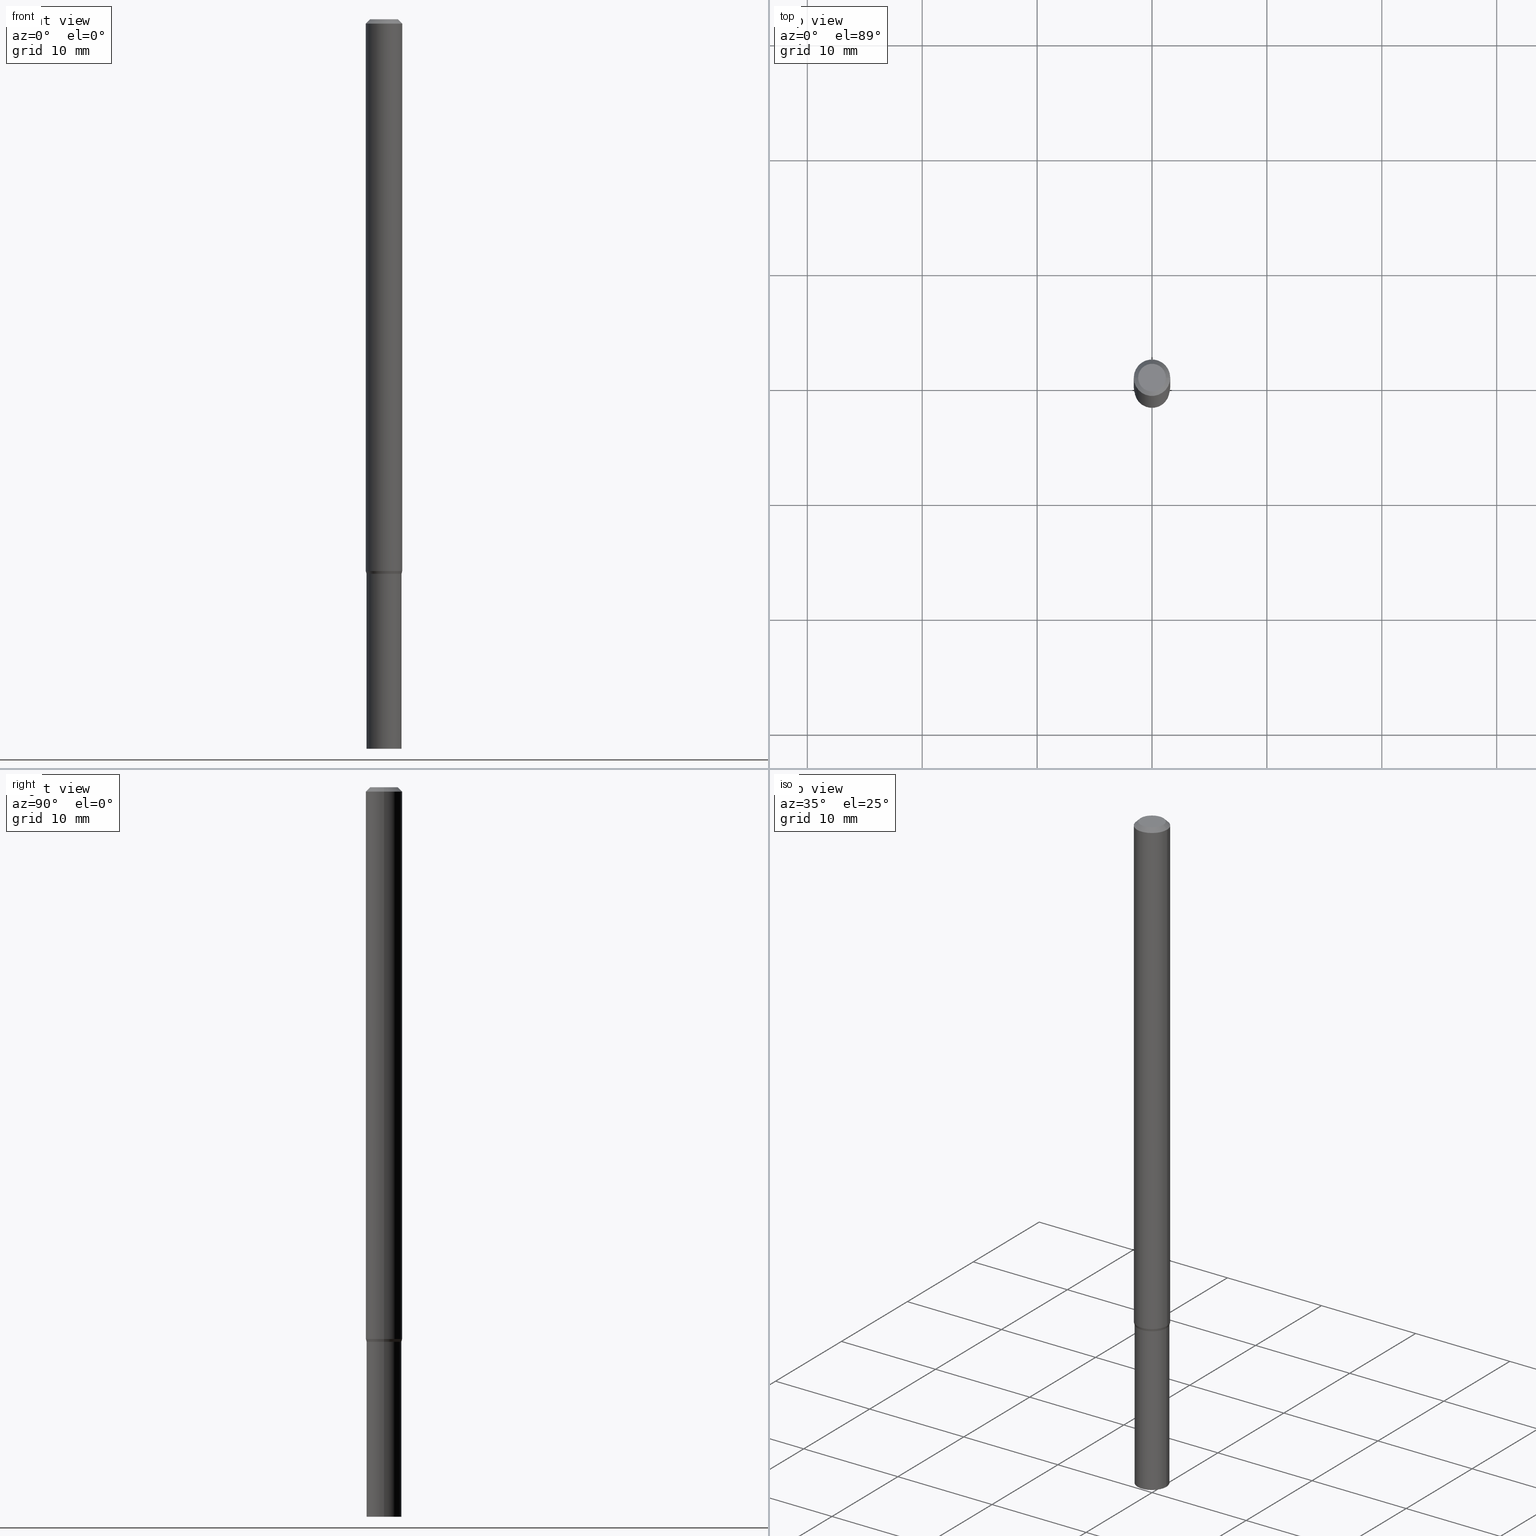
[diagram: canonical four-view strip — front | top / right | iso, engineering-drawing reading convention]
A machine part, canonical four-view strip (front | top / right | iso — engineering-drawing reading convention). The complete STEP part file that produces these views, byte-faithful:
ISO-10303-21;
HEADER;
FILE_DESCRIPTION (( 'STEP AP203' ),
    '1' );
FILE_NAME ('01254.STEP',
    '2024-03-20T00:36:38',
    ( '' ),
    ( '' ),
    'SwSTEP 2.0',
    'SolidWorks 2023',
    '' );
FILE_SCHEMA (( 'CONFIG_CONTROL_DESIGN' ));
ENDSEC;

DATA;
#1 = ORIENTED_EDGE ( 'NONE', *, *, #51, .T. ) ;
#2 = ORIENTED_EDGE ( 'NONE', *, *, #367, .T. ) ;
#3 = VECTOR ( 'NONE', #452, 39.37007874015748854 ) ;
#4 = CARTESIAN_POINT ( 'NONE',  ( 0.000000000000000000, 0.000000000000000000, 0.000000000000000000 ) ) ;
#5 = DATE_AND_TIME ( #179, #241 ) ;
#6 = APPROVAL_ROLE ( '' ) ;
#7 = ORIENTED_EDGE ( 'NONE', *, *, #64, .F. ) ;
#8 = PERSON_AND_ORGANIZATION_ROLE ( 'classification_officer' ) ;
#9 = ORIENTED_EDGE ( 'NONE', *, *, #456, .F. ) ;
#10 = CYLINDRICAL_SURFACE ( 'NONE', #193, 0.05999999999999999778 ) ;
#11 = CARTESIAN_POINT ( 'NONE',  ( 4.646390731751761103E-29, -6.633814543801978619E-15, -1.900000000000000577 ) ) ;
#12 = ADVANCED_FACE ( 'NONE', ( #443 ), #10, .T. ) ;
#13 = DIRECTION ( 'NONE',  ( -2.445468806185136877E-29, 3.491481338843145188E-15, 1.000000000000000000 ) ) ;
#14 = CARTESIAN_POINT ( 'NONE',  ( 3.316907271900976096E-16, 0.04749999999999999362, -1.161975777125777867E-16 ) ) ;
#15 = ORIENTED_EDGE ( 'NONE', *, *, #114, .F. ) ;
#16 = DIRECTION ( 'NONE',  ( 1.000000000000000000, -6.982962677686259611E-15, 0.000000000000000000 ) ) ;
#17 = AXIS2_PLACEMENT_3D ( 'NONE', #335, #460, #153 ) ;
#18 = EDGE_LOOP ( 'NONE', ( #264, #68, #401, #331 ) ) ;
#19 = DIRECTION ( 'NONE',  ( -2.445468806185136597E-29, 3.491481338843145583E-15, 1.000000000000000000 ) ) ;
#20 = ORIENTED_EDGE ( 'NONE', *, *, #444, .T. ) ;
#21 = CARTESIAN_POINT ( 'NONE',  ( 4.646390731751759982E-29, -6.633814543801977041E-15, -1.900000000000000133 ) ) ;
#22 = CARTESIAN_POINT ( 'NONE',  ( 0.05999999999999999778, -4.189777606611760421E-16, 2.925706065477561756E-30 ) ) ;
#23 = APPROVAL_STATUS ( 'not_yet_approved' ) ;
#24 = ADVANCED_FACE ( 'NONE', ( #149 ), #74, .F. ) ;
#25 = EDGE_CURVE ( 'NONE', #392, #141, #228, .T. ) ;
#26 = DIRECTION ( 'NONE',  ( 1.000000000000000000, -6.982962677686261189E-15, 0.000000000000000000 ) ) ;
#27 = DATE_AND_TIME ( #188, #142 ) ;
#28 = ORGANIZATION ( 'UNSPECIFIED', 'UNSPECIFIED', '' ) ;
#29 = PRODUCT_RELATED_PRODUCT_CATEGORY ( 'detail', '', ( #454 ) ) ;
#30 = MANIFOLD_SOLID_BREP ( 'Body-Move/Copy2[2]', #359 ) ;
#31 = PLANE ( 'NONE',  #400 ) ;
#32 = DIRECTION ( 'NONE',  ( 1.000000000000000000, -6.982962677686262766E-15, 0.000000000000000000 ) ) ;
#33 = CARTESIAN_POINT ( 'NONE',  ( -0.05949999999999999734, -6.211041616024719027E-15, -1.900000000000000577 ) ) ;
#34 = AXIS2_PLACEMENT_3D ( 'NONE', #116, #80, #90 ) ;
#35 = SHAPE_DEFINITION_REPRESENTATION ( #88, #320 ) ;
#36 = ORIENTED_EDGE ( 'NONE', *, *, #43, .F. ) ;
#37 = ORIENTED_EDGE ( 'NONE', *, *, #328, .F. ) ;
#38 = CARTESIAN_POINT ( 'NONE',  ( 3.668203209277705088E-31, -5.237222008264718399E-17, -0.01499999999999999944 ) ) ;
#39 = ORIENTED_EDGE ( 'NONE', *, *, #463, .F. ) ;
#40 = CC_DESIGN_DATE_AND_TIME_ASSIGNMENT ( #27, #155, ( #70 ) ) ;
#41 = FACE_OUTER_BOUND ( 'NONE', #18, .T. ) ;
#42 = AXIS2_PLACEMENT_3D ( 'NONE', #380, #67, #273 ) ;
#43 = EDGE_CURVE ( 'NONE', #46, #100, #166, .T. ) ;
#44 = ORIENTED_EDGE ( 'NONE', *, *, #456, .T. ) ;
#45 = VERTEX_POINT ( 'NONE', #369 ) ;
#46 = VERTEX_POINT ( 'NONE', #293 ) ;
#47 = AXIS2_PLACEMENT_3D ( 'NONE', #226, #115, #419 ) ;
#48 = AXIS2_PLACEMENT_3D ( 'NONE', #334, #220, #298 ) ;
#49 = CARTESIAN_POINT ( 'NONE',  ( -0.06000000000000034472, 4.263256414560625609E-16, -2.951361054152960229E-30 ) ) ;
#50 = PLANE ( 'NONE',  #457 ) ;
#51 = EDGE_CURVE ( 'NONE', #248, #141, #76, .T. ) ;
#52 = CARTESIAN_POINT ( 'NONE',  ( 0.000000000000000000, 0.000000000000000000, 0.000000000000000000 ) ) ;
#53 = DIRECTION ( 'NONE',  ( 1.000000000000000000, -6.982962677686261189E-15, 0.000000000000000000 ) ) ;
#54 = APPROVAL ( #440, 'UNSPECIFIED' ) ;
#55 = DIRECTION ( 'NONE',  ( -2.445468806185136597E-29, 3.491481338843145583E-15, 1.000000000000000000 ) ) ;
#56 = AXIS2_PLACEMENT_3D ( 'NONE', #246, #237, #173 ) ;
#57 = PRODUCT_DEFINITION_FORMATION_WITH_SPECIFIED_SOURCE ( 'ANY', '', #454, .NOT_KNOWN. ) ;
#58 = CARTESIAN_POINT ( 'NONE',  ( -0.06250000000000000000, -2.882716189904449546E-15, -0.01499999999999999944 ) ) ;
#59 = VERTEX_POINT ( 'NONE', #398 ) ;
#60 = ADVANCED_FACE ( 'NONE', ( #41 ), #365, .T. ) ;
#61 = APPLICATION_PROTOCOL_DEFINITION ( 'international standard', 'config_control_design', 1994, #333 ) ;
#62 = FACE_OUTER_BOUND ( 'NONE', #95, .T. ) ;
#63 = PERSON_AND_ORGANIZATION_ROLE ( 'design_supplier' ) ;
#64 = EDGE_CURVE ( 'NONE', #59, #215, #437, .T. ) ;
#65 = DIRECTION ( 'NONE',  ( -2.445468806185136877E-29, 3.491481338843145188E-15, 1.000000000000000000 ) ) ;
#66 = CARTESIAN_POINT ( 'NONE',  ( 4.646390731751759982E-29, -6.633814543801977041E-15, -1.900000000000000133 ) ) ;
#67 = DIRECTION ( 'NONE',  ( -2.445468806185136597E-29, 3.491481338843145583E-15, 1.000000000000000000 ) ) ;
#68 = ORIENTED_EDGE ( 'NONE', *, *, #363, .T. ) ;
#69 = CC_DESIGN_PERSON_AND_ORGANIZATION_ASSIGNMENT ( #234, #63, ( #57 ) ) ;
#70 = PRODUCT_DEFINITION ( 'UNKNOWN', '', #57, #96 ) ;
#71 = EDGE_LOOP ( 'NONE', ( #277, #131 ) ) ;
#72 = EDGE_LOOP ( 'NONE', ( #205, #181, #198, #182 ) ) ;
#73 = ORIENTED_EDGE ( 'NONE', *, *, #403, .T. ) ;
#74 = CYLINDRICAL_SURFACE ( 'NONE', #387, 0.06000000000000034472 ) ;
#75 = DIRECTION ( 'NONE',  ( -2.445468806185136597E-29, 3.491481338843145583E-15, 1.000000000000000000 ) ) ;
#76 = LINE ( 'NONE', #113, #253 ) ;
#77 = LOCAL_TIME ( 20, 36, 38.00000000000000000, #225 ) ;
#78 = DIRECTION ( 'NONE',  ( -2.445468806185136597E-29, 3.491481338843145583E-15, 1.000000000000000000 ) ) ;
#79 = CARTESIAN_POINT ( 'NONE',  ( -0.06000000000000019901, -6.205743161676494258E-15, -1.899500000000000410 ) ) ;
#80 = DIRECTION ( 'NONE',  ( 2.445468806185136597E-29, -3.491481338843145583E-15, -1.000000000000000000 ) ) ;
#81 = PLANE ( 'NONE',  #195 ) ;
#82 = DIRECTION ( 'NONE',  ( 1.000000000000000000, 0.000000000000000000, 0.000000000000000000 ) ) ;
#83 = CARTESIAN_POINT ( 'NONE',  ( -0.06250000000000000000, -6.157149369576314234E-15, -1.890669872981078692 ) ) ;
#84 = CONICAL_SURFACE ( 'NONE', #229, 0.05949999999999999734, 0.7853981633974739252 ) ;
#85 = CARTESIAN_POINT ( 'NONE',  ( 0.06000000000000034472, -4.189777606611784087E-16, 2.925706065477577871E-30 ) ) ;
#86 = CARTESIAN_POINT ( 'NONE',  ( 4.646390731751761103E-29, -6.633814543801978619E-15, -1.900000000000000577 ) ) ;
#87 = CC_DESIGN_PERSON_AND_ORGANIZATION_ASSIGNMENT ( #420, #89, ( #57 ) ) ;
#88 = PRODUCT_DEFINITION_SHAPE ( 'NONE', 'NONE',  #70 ) ;
#89 = PERSON_AND_ORGANIZATION_ROLE ( 'creator' ) ;
#90 = DIRECTION ( 'NONE',  ( -1.000000000000000000, 6.982962677686266711E-15, 0.000000000000000000 ) ) ;
#91 = CARTESIAN_POINT ( 'NONE',  ( -0.05999999999999999778, 4.263256414560600957E-16, -2.951361054152943413E-30 ) ) ;
#92 = ORIENTED_EDGE ( 'NONE', *, *, #232, .T. ) ;
#93 = LINE ( 'NONE', #33, #465 ) ;
#94 = AXIS2_PLACEMENT_3D ( 'NONE', #207, #243, #390 ) ;
#95 = EDGE_LOOP ( 'NONE', ( #402, #2, #357, #288 ) ) ;
#96 = DESIGN_CONTEXT ( 'detailed design', #162, 'design' ) ;
#97 = CARTESIAN_POINT ( 'NONE',  ( 0.06000000000000019901, -7.051046563793732960E-15, -1.899500000000000410 ) ) ;
#98 = CARTESIAN_POINT ( 'NONE',  ( 4.189777606612224370E-16, 0.05999999999999336420, -1.900000000000000577 ) ) ;
#99 = VECTOR ( 'NONE', #65, 39.37007874015748143 ) ;
#100 = VERTEX_POINT ( 'NONE', #83 ) ;
#101 = CC_DESIGN_APPROVAL ( #423, ( #57 ) ) ;
#102 = EDGE_LOOP ( 'NONE', ( #187, #438, #1, #92 ) ) ;
#103 = DATE_AND_TIME ( #397, #326 ) ;
#104 = ORIENTED_EDGE ( 'NONE', *, *, #451, .T. ) ;
#105 = COORDINATED_UNIVERSAL_TIME_OFFSET ( 5, 0, .BEHIND. ) ;
#106 = CALENDAR_DATE ( 2024, 19, 3 ) ;
#107 = CARTESIAN_POINT ( 'NONE',  ( 0.000000000000000000, 0.000000000000000000, 0.000000000000000000 ) ) ;
#108 = CLOSED_SHELL ( 'NONE', ( #12, #316, #60, #329 ) ) ;
#109 = AXIS2_PLACEMENT_3D ( 'NONE', #464, #272, #355 ) ;
#110 = PERSON_AND_ORGANIZATION ( #413, #28 ) ;
#111 = ORIENTED_EDGE ( 'NONE', *, *, #64, .T. ) ;
#112 = CC_DESIGN_DATE_AND_TIME_ASSIGNMENT ( #103, #282, ( #442 ) ) ;
#113 = CARTESIAN_POINT ( 'NONE',  ( -0.06250000000000000000, 3.840629472727444916E-16, -0.01499999999999999944 ) ) ;
#114 = EDGE_CURVE ( 'NONE', #126, #223, #222, .T. ) ;
#115 = DIRECTION ( 'NONE',  ( -2.445468806185136597E-29, 3.491481338843145583E-15, 1.000000000000000000 ) ) ;
#116 = CARTESIAN_POINT ( 'NONE',  ( 3.668203209277705088E-31, -5.237222008264718399E-17, -0.01499999999999999944 ) ) ;
#117 = AXIS2_PLACEMENT_3D ( 'NONE', #21, #194, #342 ) ;
#118 = CC_DESIGN_SECURITY_CLASSIFICATION ( #442, ( #57 ) ) ;
#119 = CARTESIAN_POINT ( 'NONE',  ( 3.668203209277705088E-31, -5.237222008264718399E-17, -0.01499999999999999944 ) ) ;
#120 = DIRECTION ( 'NONE',  ( -2.438088387897960049E-29, 3.491481338843145188E-15, 1.000000000000000000 ) ) ;
#121 = CARTESIAN_POINT ( 'NONE',  ( 0.06000000000000048350, -7.052792304463156041E-15, -1.900000000000000133 ) ) ;
#122 = CIRCLE ( 'NONE', #340, 0.04749999999999999362 ) ;
#123 = AXIS2_PLACEMENT_3D ( 'NONE', #172, #383, #314 ) ;
#124 = DIRECTION ( 'NONE',  ( 2.438088387897960049E-29, -3.491481338843145188E-15, -1.000000000000000000 ) ) ;
#125 = DATE_AND_TIME ( #279, #429 ) ;
#126 = VERTEX_POINT ( 'NONE', #307 ) ;
#127 = CARTESIAN_POINT ( 'NONE',  ( 4.646390731751761103E-29, -6.633814543801978619E-15, -1.900000000000000577 ) ) ;
#128 = CYLINDRICAL_SURFACE ( 'NONE', #109, 0.06250000000000000000 ) ;
#129 = UNCERTAINTY_MEASURE_WITH_UNIT (LENGTH_MEASURE( 1.000000000000000082E-05 ), #259, 'distance_accuracy_value', 'NONE');
#130 = DIRECTION ( 'NONE',  ( 1.000000000000000000, -6.982962677686268288E-15, 0.000000000000000000 ) ) ;
#131 = ORIENTED_EDGE ( 'NONE', *, *, #361, .T. ) ;
#132 = FACE_OUTER_BOUND ( 'NONE', #71, .T. ) ;
#133 = CIRCLE ( 'NONE', #117, 0.05999999999999999778 ) ;
#134 = CC_DESIGN_PERSON_AND_ORGANIZATION_ASSIGNMENT ( #169, #8, ( #442 ) ) ;
#135 = ORIENTED_EDGE ( 'NONE', *, *, #328, .T. ) ;
#136 = LINE ( 'NONE', #168, #99 ) ;
#137 = EDGE_LOOP ( 'NONE', ( #281, #345 ) ) ;
#138 = ADVANCED_FACE ( 'NONE', ( #453 ), #426, .T. ) ;
#139 = ADVANCED_FACE ( 'NONE', ( #294 ), #213, .T. ) ;
#140 = ORIENTED_EDGE ( 'NONE', *, *, #346, .T. ) ;
#141 = VERTEX_POINT ( 'NONE', #58 ) ;
#142 = LOCAL_TIME ( 20, 36, 38.00000000000000000, #105 ) ;
#143 = EDGE_LOOP ( 'NONE', ( #385, #111, #44, #424 ) ) ;
#144 = DIRECTION ( 'NONE',  ( -2.445468806185136597E-29, 3.491481338843145583E-15, 1.000000000000000000 ) ) ;
#145 = APPROVAL_DATE_TIME ( #5, #54 ) ;
#146 = VERTEX_POINT ( 'NONE', #267 ) ;
#147 = EDGE_CURVE ( 'NONE', #146, #296, #189, .T. ) ;
#148 = ORIENTED_EDGE ( 'NONE', *, *, #377, .T. ) ;
#149 = FACE_OUTER_BOUND ( 'NONE', #313, .T. ) ;
#150 = EDGE_CURVE ( 'NONE', #248, #439, #122, .T. ) ;
#151 = FACE_OUTER_BOUND ( 'NONE', #137, .T. ) ;
#152 = PERSON_AND_ORGANIZATION_ROLE ( 'creator' ) ;
#153 = DIRECTION ( 'NONE',  ( 1.000000000000000000, -6.982962677686260400E-15, 0.000000000000000000 ) ) ;
#154 = DIRECTION ( 'NONE',  ( 2.445468806185136597E-29, -3.491481338843145583E-15, -1.000000000000000000 ) ) ;
#155 = DATE_TIME_ROLE ( 'creation_date' ) ;
#156 = EDGE_CURVE ( 'NONE', #439, #392, #455, .T. ) ;
#157 = AXIS2_PLACEMENT_3D ( 'NONE', #218, #373, #260 ) ;
#158 = FACE_OUTER_BOUND ( 'NONE', #381, .T. ) ;
#159 = CIRCLE ( 'NONE', #428, 0.05999999999999999778 ) ;
#160 = DIRECTION ( 'NONE',  ( -1.000000000000000000, 6.982962677686266711E-15, 0.000000000000000000 ) ) ;
#161 = DIRECTION ( 'NONE',  ( 1.000000000000000000, -6.982962677686265922E-15, 4.876176775795935793E-29 ) ) ;
#162 = APPLICATION_CONTEXT ( 'configuration controlled 3d designs of mechanical parts and assemblies' ) ;
#163 = LENGTH_MEASURE_WITH_UNIT ( LENGTH_MEASURE( 0.02539999999999999897 ), #421 );
#164 = DIRECTION ( 'NONE',  ( -2.445468806185136877E-29, 3.491481338843145188E-15, 1.000000000000000000 ) ) ;
#165 = PERSON_AND_ORGANIZATION ( #413, #28 ) ;
#166 = CIRCLE ( 'NONE', #323, 0.06250000000000000000 ) ;
#167 = AXIS2_PLACEMENT_3D ( 'NONE', #86, #204, #233 ) ;
#168 = CARTESIAN_POINT ( 'NONE',  ( -0.06250000000000000000, 4.440892098500626162E-16, -3.074334431409316114E-30 ) ) ;
#169 = PERSON_AND_ORGANIZATION ( #413, #28 ) ;
#170 = PLANE ( 'NONE',  #94 ) ;
#171 = ORIENTED_EDGE ( 'NONE', *, *, #405, .T. ) ;
#172 = CARTESIAN_POINT ( 'NONE',  ( 4.646390731751759982E-29, -6.633814543801977041E-15, -1.900000000000000133 ) ) ;
#173 = DIRECTION ( 'NONE',  ( 1.000000000000000000, -6.982962677686260400E-15, 0.000000000000000000 ) ) ;
#174 = ORIENTED_EDGE ( 'NONE', *, *, #363, .F. ) ;
#175 = EDGE_LOOP ( 'NONE', ( #337, #20, #270, #9 ) ) ;
#176 = EDGE_LOOP ( 'NONE', ( #339, #140, #39, #15 ) ) ;
#177 = VECTOR ( 'NONE', #196, 39.37007874015748143 ) ;
#178 = CC_DESIGN_APPROVAL ( #54, ( #442 ) ) ;
#179 = CALENDAR_DATE ( 2024, 19, 3 ) ;
#180 = ORIENTED_EDGE ( 'NONE', *, *, #350, .T. ) ;
#181 = ORIENTED_EDGE ( 'NONE', *, *, #368, .T. ) ;
#182 = ORIENTED_EDGE ( 'NONE', *, *, #232, .F. ) ;
#183 = ADVANCED_FACE ( 'NONE', ( #151 ), #50, .F. ) ;
#184 = AXIS2_PLACEMENT_3D ( 'NONE', #449, #297, #53 ) ;
#185 = EDGE_CURVE ( 'NONE', #439, #248, #247, .T. ) ;
#186 = CARTESIAN_POINT ( 'NONE',  ( -0.04749999999999999362, 3.578768372314212971E-16, 9.929557176494080355E-17 ) ) ;
#187 = ORIENTED_EDGE ( 'NONE', *, *, #156, .F. ) ;
#188 = CALENDAR_DATE ( 2024, 19, 3 ) ;
#189 = LINE ( 'NONE', #338, #274 ) ;
#190 = ORIENTED_EDGE ( 'NONE', *, *, #185, .F. ) ;
#191 = DATE_AND_TIME ( #106, #77 ) ;
#192 = CARTESIAN_POINT ( 'NONE',  ( 4.646390731751761103E-29, -6.633814543801978619E-15, -1.900000000000000577 ) ) ;
#193 = AXIS2_PLACEMENT_3D ( 'NONE', #107, #252, #250 ) ;
#194 = DIRECTION ( 'NONE',  ( -2.445468806185136597E-29, 3.491481338843145583E-15, 1.000000000000000000 ) ) ;
#195 = AXIS2_PLACEMENT_3D ( 'NONE', #11, #120, #161 ) ;
#196 = DIRECTION ( 'NONE',  ( -2.445468806185136877E-29, 3.491481338843145188E-15, 1.000000000000000000 ) ) ;
#197 = CARTESIAN_POINT ( 'NONE',  ( 0.06250000000000000000, -4.811533449433679005E-16, -0.01499999999999999944 ) ) ;
#198 = ORIENTED_EDGE ( 'NONE', *, *, #275, .T. ) ;
#199 = MECHANICAL_CONTEXT ( 'NONE', #333, 'mechanical' ) ;
#200 = DIRECTION ( 'NONE',  ( -2.445468806185136597E-29, 3.491481338843145583E-15, 1.000000000000000000 ) ) ;
#201 = ORIENTED_EDGE ( 'NONE', *, *, #147, .F. ) ;
#202 = CC_DESIGN_PERSON_AND_ORGANIZATION_ASSIGNMENT ( #371, #152, ( #70 ) ) ;
#203 = CIRCLE ( 'NONE', #209, 0.06250000000000000000 ) ;
#204 = DIRECTION ( 'NONE',  ( -2.445468806185136597E-29, 3.491481338843145583E-15, 1.000000000000000000 ) ) ;
#205 = ORIENTED_EDGE ( 'NONE', *, *, #367, .F. ) ;
#206 = DIRECTION ( 'NONE',  ( -2.445468806185136597E-29, 3.491481338843145583E-15, 1.000000000000000000 ) ) ;
#207 = CARTESIAN_POINT ( 'NONE',  ( 6.194428952736783458E-29, -8.613054816532157721E-15, -2.500000000000000000 ) ) ;
#208 = ORIENTED_EDGE ( 'NONE', *, *, #289, .F. ) ;
#209 = AXIS2_PLACEMENT_3D ( 'NONE', #280, #431, #32 ) ;
#210 = EDGE_LOOP ( 'NONE', ( #235, #244 ) ) ;
#211 = ADVANCED_FACE ( 'NONE', ( #445 ), #410, .T. ) ;
#212 = DIRECTION ( 'NONE',  ( 1.000000000000000000, -6.982962677686266711E-15, 4.876176775795935232E-29 ) ) ;
#213 = CONICAL_SURFACE ( 'NONE', #157, 0.05949999999999999734, 0.7853981633974739252 ) ;
#214 = AXIS2_PLACEMENT_3D ( 'NONE', #356, #200, #430 ) ;
#215 = VERTEX_POINT ( 'NONE', #79 ) ;
#216 = APPROVAL_ROLE ( '' ) ;
#217 = ORIENTED_EDGE ( 'NONE', *, *, #370, .T. ) ;
#218 = CARTESIAN_POINT ( 'NONE',  ( 4.646390731751761103E-29, -6.633814543801978619E-15, -1.900000000000000577 ) ) ;
#219 = AXIS2_PLACEMENT_3D ( 'NONE', #415, #379, #82 ) ;
#220 = DIRECTION ( 'NONE',  ( -2.445468806185136597E-29, 3.491481338843145583E-15, 1.000000000000000000 ) ) ;
#221 =( NAMED_UNIT ( * ) SI_UNIT ( $, .STERADIAN. ) SOLID_ANGLE_UNIT ( ) );
#222 = LINE ( 'NONE', #22, #238 ) ;
#223 = VERTEX_POINT ( 'NONE', #336 ) ;
#224 = LINE ( 'NONE', #266, #3 ) ;
#225 = COORDINATED_UNIVERSAL_TIME_OFFSET ( 5, 0, .BEHIND. ) ;
#226 = CARTESIAN_POINT ( 'NONE',  ( -2.428242233434862517E-45, 3.466886358470595669E-31, 9.929557176494321944E-17 ) ) ;
#227 = EDGE_LOOP ( 'NONE', ( #286, #104, #36, #404 ) ) ;
#228 = CIRCLE ( 'NONE', #308, 0.06250000000000000000 ) ;
#229 = AXIS2_PLACEMENT_3D ( 'NONE', #192, #447, #16 ) ;
#230 = CYLINDRICAL_SURFACE ( 'NONE', #42, 0.06000000000000034472 ) ;
#231 = PERSON_AND_ORGANIZATION ( #413, #28 ) ;
#232 = EDGE_CURVE ( 'NONE', #141, #392, #448, .T. ) ;
#233 = DIRECTION ( 'NONE',  ( 1.000000000000000000, -6.982962677686259611E-15, 0.000000000000000000 ) ) ;
#234 = PERSON_AND_ORGANIZATION ( #413, #28 ) ;
#235 = ORIENTED_EDGE ( 'NONE', *, *, #370, .F. ) ;
#236 = LINE ( 'NONE', #310, #378 ) ;
#237 = DIRECTION ( 'NONE',  ( -2.445468806185136597E-29, 3.491481338843145583E-15, 1.000000000000000000 ) ) ;
#238 = VECTOR ( 'NONE', #164, 39.37007874015748143 ) ;
#239 = CIRCLE ( 'NONE', #332, 0.06000000000000048350 ) ;
#240 = CARTESIAN_POINT ( 'NONE',  ( 6.113672015462842613E-29, -8.728703347107864943E-15, -2.500000000000000000 ) ) ;
#241 = LOCAL_TIME ( 20, 36, 38.00000000000000000, #255 ) ;
#242 = APPROVAL_DATE_TIME ( #191, #283 ) ;
#243 = DIRECTION ( 'NONE',  ( -2.438088387897960049E-29, 3.491481338843145188E-15, 1.000000000000000000 ) ) ;
#244 = ORIENTED_EDGE ( 'NONE', *, *, #444, .F. ) ;
#245 = PERSON_AND_ORGANIZATION_ROLE ( 'design_owner' ) ;
#246 = CARTESIAN_POINT ( 'NONE',  ( 4.646390731751759982E-29, -6.633814543801977041E-15, -1.900000000000000133 ) ) ;
#247 = CIRCLE ( 'NONE', #47, 0.04749999999999999362 ) ;
#248 = VERTEX_POINT ( 'NONE', #186 ) ;
#249 = DIRECTION ( 'NONE',  ( -2.445468806185136597E-29, 3.491481338843145583E-15, 1.000000000000000000 ) ) ;
#250 = DIRECTION ( 'NONE',  ( 1.000000000000000000, -6.982962677686267499E-15, 4.876176775795936353E-29 ) ) ;
#251 = ADVANCED_FACE ( 'NONE', ( #348 ), #84, .T. ) ;
#252 = DIRECTION ( 'NONE',  ( -2.445468806185136597E-29, 3.491481338843145583E-15, 1.000000000000000000 ) ) ;
#253 = VECTOR ( 'NONE', #364, 39.37007874015748143 ) ;
#254 = AXIS2_PLACEMENT_3D ( 'NONE', #52, #78, #450 ) ;
#255 = COORDINATED_UNIVERSAL_TIME_OFFSET ( 5, 0, .BEHIND. ) ;
#256 = DIRECTION ( 'NONE',  ( 1.000000000000000000, -6.982962677686266711E-15, 0.000000000000000000 ) ) ;
#257 = ORIENTED_EDGE ( 'NONE', *, *, #451, .F. ) ;
#258 = DIRECTION ( 'NONE',  ( -2.445468806185136877E-29, 3.491481338843145188E-15, 1.000000000000000000 ) ) ;
#259 =( CONVERSION_BASED_UNIT ( 'INCH', #163 ) LENGTH_UNIT ( ) NAMED_UNIT ( #315 ) );
#260 = DIRECTION ( 'NONE',  ( 1.000000000000000000, -6.982962677686259611E-15, 0.000000000000000000 ) ) ;
#261 = LINE ( 'NONE', #85, #434 ) ;
#262 = LINE ( 'NONE', #414, #177 ) ;
#263 = DIRECTION ( 'NONE',  ( 0.7071067811865656694, -2.468850131082446387E-15, 0.7071067811865294761 ) ) ;
#264 = ORIENTED_EDGE ( 'NONE', *, *, #346, .F. ) ;
#265 = CONICAL_SURFACE ( 'NONE', #34, 0.06250000000000000000, 0.7853981633974450594 ) ;
#266 = CARTESIAN_POINT ( 'NONE',  ( -0.06000000000000048350, -6.207488902345914184E-15, -1.900000000000000133 ) ) ;
#267 = CARTESIAN_POINT ( 'NONE',  ( 0.05949999999999999734, -7.049300823124310667E-15, -1.900000000000000577 ) ) ;
#268 = APPROVAL_DATE_TIME ( #125, #423 ) ;
#269 = ADVANCED_FACE ( 'NONE', ( #303 ), #81, .F. ) ;
#270 = ORIENTED_EDGE ( 'NONE', *, *, #147, .T. ) ;
#271 = DIRECTION ( 'NONE',  ( -2.445468806185136597E-29, 3.491481338843145583E-15, 1.000000000000000000 ) ) ;
#272 = DIRECTION ( 'NONE',  ( -2.445468806185136597E-29, 3.491481338843145583E-15, 1.000000000000000000 ) ) ;
#273 = DIRECTION ( 'NONE',  ( 1.000000000000000000, -6.982962677686266711E-15, 4.876176775795935232E-29 ) ) ;
#274 = VECTOR ( 'NONE', #263, 39.37007874015748143 ) ;
#275 = EDGE_CURVE ( 'NONE', #46, #392, #262, .T. ) ;
#276 = DIRECTION ( 'NONE',  ( -2.445468806185136597E-29, 3.491481338843145583E-15, 1.000000000000000000 ) ) ;
#277 = ORIENTED_EDGE ( 'NONE', *, *, #463, .T. ) ;
#278 = CC_DESIGN_PERSON_AND_ORGANIZATION_ASSIGNMENT ( #165, #245, ( #454 ) ) ;
#279 = CALENDAR_DATE ( 2024, 19, 3 ) ;
#280 = CARTESIAN_POINT ( 'NONE',  ( 4.623574197169242373E-29, -6.601238579426376850E-15, -1.890669872981078692 ) ) ;
#281 = ORIENTED_EDGE ( 'NONE', *, *, #150, .T. ) ;
#282 = DATE_TIME_ROLE ( 'classification_date' ) ;
#283 = APPROVAL ( #285, 'UNSPECIFIED' ) ;
#284 = APPROVAL_PERSON_ORGANIZATION ( #231, #283, #6 ) ;
#285 = APPROVAL_STATUS ( 'not_yet_approved' ) ;
#286 = ORIENTED_EDGE ( 'NONE', *, *, #289, .T. ) ;
#287 = DIRECTION ( 'NONE',  ( 1.000000000000000000, -6.982962677686267499E-15, 4.876176775795936353E-29 ) ) ;
#288 = ORIENTED_EDGE ( 'NONE', *, *, #275, .F. ) ;
#289 = EDGE_CURVE ( 'NONE', #290, #59, #239, .T. ) ;
#290 = VERTEX_POINT ( 'NONE', #121 ) ;
#291 = VECTOR ( 'NONE', #258, 39.37007874015748143 ) ;
#292 = AXIS2_PLACEMENT_3D ( 'NONE', #127, #271, #412 ) ;
#293 = CARTESIAN_POINT ( 'NONE',  ( 0.06250000000000000000, -7.037673746781767731E-15, -1.890669872981078692 ) ) ;
#294 = FACE_OUTER_BOUND ( 'NONE', #327, .T. ) ;
#295 = ADVANCED_FACE ( 'NONE', ( #416 ), #230, .F. ) ;
#296 = VERTEX_POINT ( 'NONE', #97 ) ;
#297 = DIRECTION ( 'NONE',  ( -2.445468806185136597E-29, 3.491481338843145583E-15, 1.000000000000000000 ) ) ;
#298 = DIRECTION ( 'NONE',  ( 1.000000000000000000, -6.982962677686266711E-15, 0.000000000000000000 ) ) ;
#299 = AXIS2_PLACEMENT_3D ( 'NONE', #119, #154, #160 ) ;
#300 = EDGE_CURVE ( 'NONE', #126, #45, #317, .T. ) ;
#301 = AXIS2_PLACEMENT_3D ( 'NONE', #240, #276, #462 ) ;
#302 = CARTESIAN_POINT ( 'NONE',  ( 0.04749999999999999362, -4.035134999187576651E-16, 9.929557176494579556E-17 ) ) ;
#303 = FACE_OUTER_BOUND ( 'NONE', #210, .T. ) ;
#304 = DIRECTION ( 'NONE',  ( 1.000000000000000000, -6.982962677686260400E-15, 0.000000000000000000 ) ) ;
#305 = ORIENTED_EDGE ( 'NONE', *, *, #300, .F. ) ;
#306 = FACE_OUTER_BOUND ( 'NONE', #396, .T. ) ;
#307 = CARTESIAN_POINT ( 'NONE',  ( 0.05999999999999999778, -9.147681107769039999E-15, -2.500000000000000000 ) ) ;
#308 = AXIS2_PLACEMENT_3D ( 'NONE', #38, #75, #256 ) ;
#309 = CONICAL_SURFACE ( 'NONE', #17, 0.06000000000000048350, 0.2617993877991178220 ) ;
#310 = CARTESIAN_POINT ( 'NONE',  ( 0.06000000000000048350, -7.052792304463156041E-15, -1.900000000000000133 ) ) ;
#311 = CARTESIAN_POINT ( 'NONE',  ( 0.06250000000000000000, -4.888073874380388472E-16, -0.01499999999999999944 ) ) ;
#312 = DIRECTION ( 'NONE',  ( -2.445468806185136877E-29, 3.491481338843145188E-15, 1.000000000000000000 ) ) ;
#313 = EDGE_LOOP ( 'NONE', ( #7, #208, #73, #135 ) ) ;
#314 = DIRECTION ( 'NONE',  ( 1.000000000000000000, -6.982962677686260400E-15, 0.000000000000000000 ) ) ;
#315 = DIMENSIONAL_EXPONENTS ( 1.000000000000000000, 0.000000000000000000, 0.000000000000000000, 0.000000000000000000, 0.000000000000000000, 0.000000000000000000, 0.000000000000000000 ) ;
#316 = ADVANCED_FACE ( 'NONE', ( #352 ), #170, .F. ) ;
#317 = CIRCLE ( 'NONE', #301, 0.05999999999999999778 ) ;
#318 = DIRECTION ( 'NONE',  ( -2.445468806185136597E-29, 3.491481338843145583E-15, 1.000000000000000000 ) ) ;
#319 = COORDINATED_UNIVERSAL_TIME_OFFSET ( 5, 0, .BEHIND. ) ;
#320 = ADVANCED_BREP_SHAPE_REPRESENTATION ( '01254', ( #330, #30, #219 ), #459 ) ;
#321 = ORIENTED_EDGE ( 'NONE', *, *, #156, .T. ) ;
#322 = APPLICATION_PROTOCOL_DEFINITION ( 'international standard', 'config_control_design', 1994, #162 ) ;
#323 = AXIS2_PLACEMENT_3D ( 'NONE', #395, #325, #372 ) ;
#324 = CIRCLE ( 'NONE', #292, 0.05949999999999999734 ) ;
#325 = DIRECTION ( 'NONE',  ( -2.445468806185136597E-29, 3.491481338843145583E-15, 1.000000000000000000 ) ) ;
#326 = LOCAL_TIME ( 20, 36, 38.00000000000000000, #319 ) ;
#327 = EDGE_LOOP ( 'NONE', ( #217, #180, #37, #201 ) ) ;
#328 = EDGE_CURVE ( 'NONE', #296, #215, #341, .T. ) ;
#329 = ADVANCED_FACE ( 'NONE', ( #132 ), #31, .F. ) ;
#330 = MANIFOLD_SOLID_BREP ( 'Body-Move/Copy2[1]', #108 ) ;
#331 = ORIENTED_EDGE ( 'NONE', *, *, #361, .F. ) ;
#332 = AXIS2_PLACEMENT_3D ( 'NONE', #343, #19, #304 ) ;
#333 = APPLICATION_CONTEXT ( 'configuration controlled 3d designs of mechanical parts and assemblies' ) ;
#334 = CARTESIAN_POINT ( 'NONE',  ( 3.668203209277705088E-31, -5.237222008264718399E-17, -0.01499999999999999944 ) ) ;
#335 = CARTESIAN_POINT ( 'NONE',  ( 4.646390731751759982E-29, -6.633814543801977041E-15, -1.900000000000000133 ) ) ;
#336 = CARTESIAN_POINT ( 'NONE',  ( 0.05999999999999999778, -7.052792304463153675E-15, -1.900000000000000133 ) ) ;
#337 = ORIENTED_EDGE ( 'NONE', *, *, #350, .F. ) ;
#338 = CARTESIAN_POINT ( 'NONE',  ( 0.05949999999999999734, -7.049300823124310667E-15, -1.900000000000000577 ) ) ;
#339 = ORIENTED_EDGE ( 'NONE', *, *, #300, .T. ) ;
#340 = AXIS2_PLACEMENT_3D ( 'NONE', #376, #55, #375 ) ;
#341 = CIRCLE ( 'NONE', #366, 0.06000000000000019901 ) ;
#342 = DIRECTION ( 'NONE',  ( 1.000000000000000000, -6.982962677686268288E-15, 0.000000000000000000 ) ) ;
#343 = CARTESIAN_POINT ( 'NONE',  ( 4.646390731751759982E-29, -6.633814543801977041E-15, -1.900000000000000133 ) ) ;
#344 = PERSON_AND_ORGANIZATION ( #413, #28 ) ;
#345 = ORIENTED_EDGE ( 'NONE', *, *, #185, .T. ) ;
#346 = EDGE_CURVE ( 'NONE', #45, #436, #358, .T. ) ;
#347 = DIRECTION ( 'NONE',  ( 0.2588190451024902083, 1.565188264969868881E-15, 0.9659258262890765279 ) ) ;
#348 = FACE_OUTER_BOUND ( 'NONE', #175, .T. ) ;
#349 = EDGE_LOOP ( 'NONE', ( #305, #174 ) ) ;
#350 = EDGE_CURVE ( 'NONE', #362, #215, #93, .T. ) ;
#351 = ADVANCED_FACE ( 'NONE', ( #466 ), #407, .T. ) ;
#352 = FACE_OUTER_BOUND ( 'NONE', #349, .T. ) ;
#353 = SECURITY_CLASSIFICATION_LEVEL ( 'unclassified' ) ;
#354 = CC_DESIGN_APPROVAL ( #283, ( #70 ) ) ;
#355 = DIRECTION ( 'NONE',  ( 1.000000000000000000, -6.982962677686266711E-15, 4.876176775795935793E-29 ) ) ;
#356 = CARTESIAN_POINT ( 'NONE',  ( 6.113672015462842613E-29, -8.728703347107864943E-15, -2.500000000000000000 ) ) ;
#357 = ORIENTED_EDGE ( 'NONE', *, *, #25, .F. ) ;
#358 = LINE ( 'NONE', #91, #360 ) ;
#359 = CLOSED_SHELL ( 'NONE', ( #295, #139, #432, #399, #351, #408, #211, #138, #183, #269, #251, #24 ) ) ;
#360 = VECTOR ( 'NONE', #312, 39.37007874015748143 ) ;
#361 = EDGE_CURVE ( 'NONE', #436, #223, #159, .T. ) ;
#362 = VERTEX_POINT ( 'NONE', #386 ) ;
#363 = EDGE_CURVE ( 'NONE', #45, #126, #388, .T. ) ;
#364 = DIRECTION ( 'NONE',  ( -0.7071067811865452413, 2.468850131082233000E-15, -0.7071067811865497932 ) ) ;
#365 = CYLINDRICAL_SURFACE ( 'NONE', #446, 0.05999999999999999778 ) ;
#366 = AXIS2_PLACEMENT_3D ( 'NONE', #461, #318, #26 ) ;
#367 = EDGE_CURVE ( 'NONE', #100, #141, #136, .T. ) ;
#368 = EDGE_CURVE ( 'NONE', #100, #46, #203, .T. ) ;
#369 = CARTESIAN_POINT ( 'NONE',  ( -0.05999999999999999778, -7.254933303998859713E-15, -2.500000000000000000 ) ) ;
#370 = EDGE_CURVE ( 'NONE', #146, #362, #418, .T. ) ;
#371 = PERSON_AND_ORGANIZATION ( #413, #28 ) ;
#372 = DIRECTION ( 'NONE',  ( 1.000000000000000000, -6.982962677686262766E-15, 0.000000000000000000 ) ) ;
#373 = DIRECTION ( 'NONE',  ( -2.445468806185136597E-29, 3.491481338843145583E-15, 1.000000000000000000 ) ) ;
#374 = DIRECTION ( 'NONE',  ( 0.7071067811865452413, -7.319954787623248157E-15, -0.7071067811865497932 ) ) ;
#375 = DIRECTION ( 'NONE',  ( 1.000000000000000000, -6.982962677686267499E-15, 4.884662768193073002E-29 ) ) ;
#376 = CARTESIAN_POINT ( 'NONE',  ( -2.428242233434862517E-45, 3.466886358470595669E-31, 9.929557176494321944E-17 ) ) ;
#377 = EDGE_CURVE ( 'NONE', #59, #290, #417, .T. ) ;
#378 = VECTOR ( 'NONE', #347, 39.37007874015748854 ) ;
#379 = DIRECTION ( 'NONE',  ( 0.000000000000000000, 0.000000000000000000, 1.000000000000000000 ) ) ;
#380 = CARTESIAN_POINT ( 'NONE',  ( 0.000000000000000000, 0.000000000000000000, 0.000000000000000000 ) ) ;
#381 = EDGE_LOOP ( 'NONE', ( #257, #148, #171, #427 ) ) ;
#382 = CARTESIAN_POINT ( 'NONE',  ( -0.05999999999999999778, -7.254933303998859713E-15, -1.900000000000000133 ) ) ;
#383 = DIRECTION ( 'NONE',  ( -2.445468806185136597E-29, 3.491481338843145583E-15, 1.000000000000000000 ) ) ;
#384 = COORDINATED_UNIVERSAL_TIME_OFFSET ( 5, 0, .BEHIND. ) ;
#385 = ORIENTED_EDGE ( 'NONE', *, *, #377, .F. ) ;
#386 = CARTESIAN_POINT ( 'NONE',  ( -0.05949999999999999734, -6.208392388850606248E-15, -1.900000000000000577 ) ) ;
#387 = AXIS2_PLACEMENT_3D ( 'NONE', #441, #249, #212 ) ;
#388 = CIRCLE ( 'NONE', #214, 0.05999999999999999778 ) ;
#389 = APPROVAL_PERSON_ORGANIZATION ( #344, #423, #458 ) ;
#390 = DIRECTION ( 'NONE',  ( 1.000000000000000000, -6.982962677686265922E-15, 4.876176775795935793E-29 ) ) ;
#391 = DIRECTION ( 'NONE',  ( -1.000000000000000000, 6.982962677686265922E-15, -4.876176775795935793E-29 ) ) ;
#392 = VERTEX_POINT ( 'NONE', #311 ) ;
#393 = VECTOR ( 'NONE', #374, 39.37007874015748143 ) ;
#394 = CIRCLE ( 'NONE', #184, 0.06000000000000019901 ) ;
#395 = CARTESIAN_POINT ( 'NONE',  ( 4.623574197169242373E-29, -6.601238579426376850E-15, -1.890669872981078692 ) ) ;
#396 = EDGE_LOOP ( 'NONE', ( #190, #321, #433, #411 ) ) ;
#397 = CALENDAR_DATE ( 2024, 19, 3 ) ;
#398 = CARTESIAN_POINT ( 'NONE',  ( -0.06000000000000048350, -6.182319135961114998E-15, -1.900000000000000133 ) ) ;
#399 = ADVANCED_FACE ( 'NONE', ( #62 ), #128, .T. ) ;
#400 = AXIS2_PLACEMENT_3D ( 'NONE', #98, #422, #391 ) ;
#401 = ORIENTED_EDGE ( 'NONE', *, *, #114, .T. ) ;
#402 = ORIENTED_EDGE ( 'NONE', *, *, #43, .T. ) ;
#403 = EDGE_CURVE ( 'NONE', #290, #296, #261, .T. ) ;
#404 = ORIENTED_EDGE ( 'NONE', *, *, #405, .F. ) ;
#405 = EDGE_CURVE ( 'NONE', #290, #46, #236, .T. ) ;
#406 = DIRECTION ( 'NONE',  ( -1.000000000000000000, 6.982962677686265922E-15, -4.876176775795935793E-29 ) ) ;
#407 = CONICAL_SURFACE ( 'NONE', #56, 0.06000000000000048350, 0.2617993877991178220 ) ;
#408 = ADVANCED_FACE ( 'NONE', ( #158 ), #309, .T. ) ;
#409 =( NAMED_UNIT ( * ) PLANE_ANGLE_UNIT ( ) SI_UNIT ( $, .RADIAN. ) );
#410 = CYLINDRICAL_SURFACE ( 'NONE', #254, 0.06250000000000000000 ) ;
#411 = ORIENTED_EDGE ( 'NONE', *, *, #51, .F. ) ;
#412 = DIRECTION ( 'NONE',  ( 1.000000000000000000, -6.982962677686259611E-15, 0.000000000000000000 ) ) ;
#413 = PERSON ( 'UNSPECIFIED', 'UNSPECIFIED', 'UNSPECIFIED', ('UNSPECIFIED'), ('UNSPECIFIED'), ('UNSPECIFIED') ) ;
#414 = CARTESIAN_POINT ( 'NONE',  ( 0.06250000000000000000, -4.364351673553916694E-16, 3.047610484872459871E-30 ) ) ;
#415 = CARTESIAN_POINT ( 'NONE',  ( 0.000000000000000000, 0.000000000000000000, 0.000000000000000000 ) ) ;
#416 = FACE_OUTER_BOUND ( 'NONE', #143, .T. ) ;
#417 = CIRCLE ( 'NONE', #123, 0.06000000000000048350 ) ;
#418 = CIRCLE ( 'NONE', #167, 0.05949999999999999734 ) ;
#419 = DIRECTION ( 'NONE',  ( 1.000000000000000000, -6.982962677686267499E-15, 4.884662768193073002E-29 ) ) ;
#420 = PERSON_AND_ORGANIZATION ( #413, #28 ) ;
#421 =( LENGTH_UNIT ( ) NAMED_UNIT ( * ) SI_UNIT ( $, .METRE. ) );
#422 = DIRECTION ( 'NONE',  ( 2.438088387897960049E-29, -3.491481338843145188E-15, -1.000000000000000000 ) ) ;
#423 = APPROVAL ( #23, 'UNSPECIFIED' ) ;
#424 = ORIENTED_EDGE ( 'NONE', *, *, #403, .F. ) ;
#425 = DIRECTION ( 'NONE',  ( -0.7071067811865656694, 7.493145998870420424E-15, 0.7071067811865294761 ) ) ;
#426 = CONICAL_SURFACE ( 'NONE', #299, 0.06250000000000000000, 0.7853981633974450594 ) ;
#427 = ORIENTED_EDGE ( 'NONE', *, *, #368, .F. ) ;
#428 = AXIS2_PLACEMENT_3D ( 'NONE', #66, #206, #130 ) ;
#429 = LOCAL_TIME ( 20, 36, 38.00000000000000000, #384 ) ;
#430 = DIRECTION ( 'NONE',  ( 1.000000000000000000, -6.982962677686251722E-15, 0.000000000000000000 ) ) ;
#431 = DIRECTION ( 'NONE',  ( -2.445468806185136597E-29, 3.491481338843145583E-15, 1.000000000000000000 ) ) ;
#432 = ADVANCED_FACE ( 'NONE', ( #306 ), #265, .T. ) ;
#433 = ORIENTED_EDGE ( 'NONE', *, *, #25, .T. ) ;
#434 = VECTOR ( 'NONE', #13, 39.37007874015748143 ) ;
#435 = APPROVAL_PERSON_ORGANIZATION ( #110, #54, #216 ) ;
#436 = VERTEX_POINT ( 'NONE', #382 ) ;
#437 = LINE ( 'NONE', #49, #291 ) ;
#438 = ORIENTED_EDGE ( 'NONE', *, *, #150, .F. ) ;
#439 = VERTEX_POINT ( 'NONE', #302 ) ;
#440 = APPROVAL_STATUS ( 'not_yet_approved' ) ;
#441 = CARTESIAN_POINT ( 'NONE',  ( 0.000000000000000000, 0.000000000000000000, 0.000000000000000000 ) ) ;
#442 = SECURITY_CLASSIFICATION ( '', '', #353 ) ;
#443 = FACE_OUTER_BOUND ( 'NONE', #176, .T. ) ;
#444 = EDGE_CURVE ( 'NONE', #362, #146, #324, .T. ) ;
#445 = FACE_OUTER_BOUND ( 'NONE', #72, .T. ) ;
#446 = AXIS2_PLACEMENT_3D ( 'NONE', #4, #144, #287 ) ;
#447 = DIRECTION ( 'NONE',  ( -2.445468806185136597E-29, 3.491481338843145583E-15, 1.000000000000000000 ) ) ;
#448 = CIRCLE ( 'NONE', #48, 0.06250000000000000000 ) ;
#449 = CARTESIAN_POINT ( 'NONE',  ( 4.645167997348667181E-29, -6.632068803132556326E-15, -1.899500000000000410 ) ) ;
#450 = DIRECTION ( 'NONE',  ( 1.000000000000000000, -6.982962677686266711E-15, 4.876176775795935793E-29 ) ) ;
#451 = EDGE_CURVE ( 'NONE', #59, #100, #224, .T. ) ;
#452 = DIRECTION ( 'NONE',  ( -0.2588190451024902083, 5.211531920934357771E-15, 0.9659258262890765279 ) ) ;
#453 = FACE_OUTER_BOUND ( 'NONE', #102, .T. ) ;
#454 = PRODUCT ( '01254', '01254', '', ( #199 ) ) ;
#455 = LINE ( 'NONE', #197, #393 ) ;
#456 = EDGE_CURVE ( 'NONE', #215, #296, #394, .T. ) ;
#457 = AXIS2_PLACEMENT_3D ( 'NONE', #14, #124, #406 ) ;
#458 = APPROVAL_ROLE ( '' ) ;
#459 =( GEOMETRIC_REPRESENTATION_CONTEXT ( 3 ) GLOBAL_UNCERTAINTY_ASSIGNED_CONTEXT ( ( #129 ) ) GLOBAL_UNIT_ASSIGNED_CONTEXT ( ( #259, #409, #221 ) ) REPRESENTATION_CONTEXT ( 'NONE', 'WORKASPACE' ) );
#460 = DIRECTION ( 'NONE',  ( -2.445468806185136597E-29, 3.491481338843145583E-15, 1.000000000000000000 ) ) ;
#461 = CARTESIAN_POINT ( 'NONE',  ( 4.645167997348667181E-29, -6.632068803132556326E-15, -1.899500000000000410 ) ) ;
#462 = DIRECTION ( 'NONE',  ( 1.000000000000000000, -6.982962677686251722E-15, 0.000000000000000000 ) ) ;
#463 = EDGE_CURVE ( 'NONE', #223, #436, #133, .T. ) ;
#464 = CARTESIAN_POINT ( 'NONE',  ( 0.000000000000000000, 0.000000000000000000, 0.000000000000000000 ) ) ;
#465 = VECTOR ( 'NONE', #425, 39.37007874015748143 ) ;
#466 = FACE_OUTER_BOUND ( 'NONE', #227, .T. ) ;
ENDSEC;
END-ISO-10303-21;
